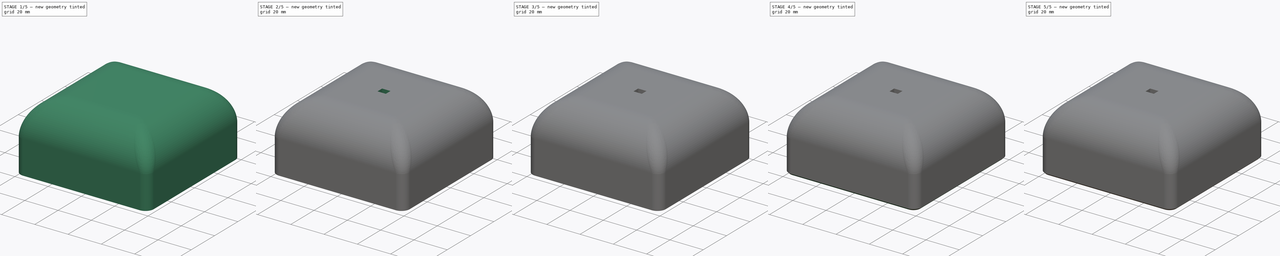
[diagram: build sequence overview — one tinted view per stage of 5, left to right]
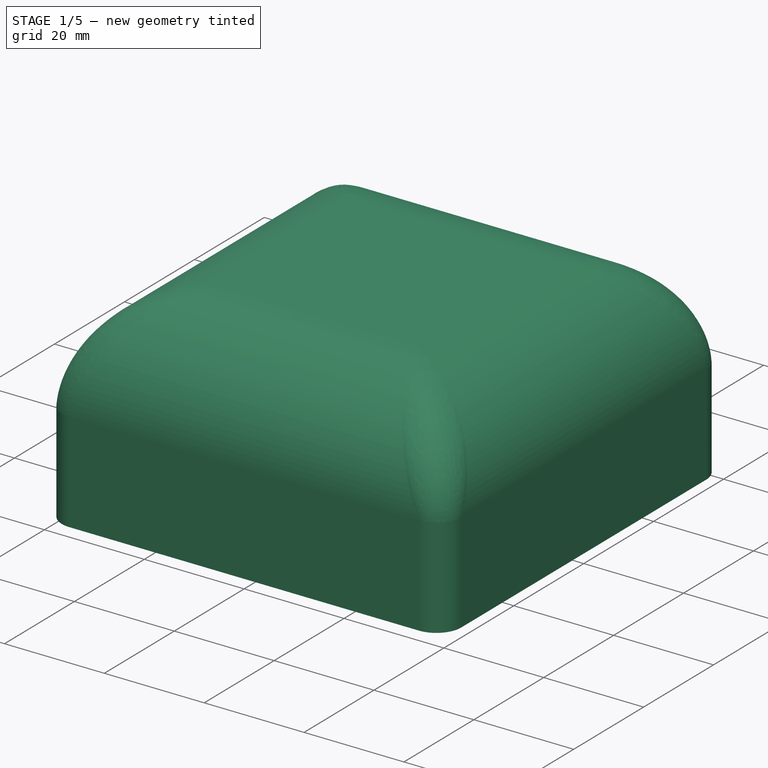
[diagram: stage 1 of 5 — iso view after this stage's code; geometry added in this stage tinted green]
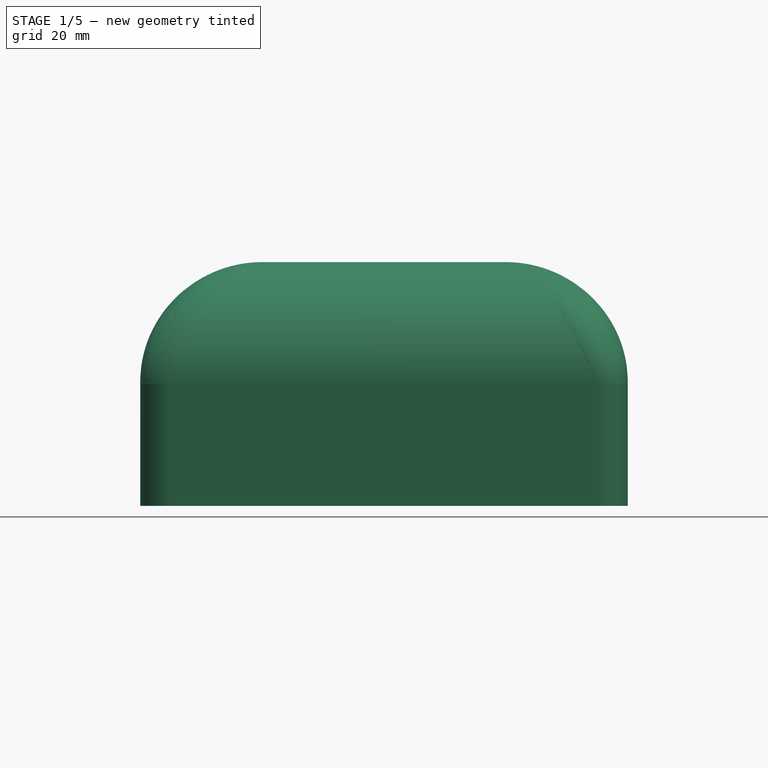
[diagram: stage 1 of 5 — front view after this stage's code; geometry added in this stage tinted green]
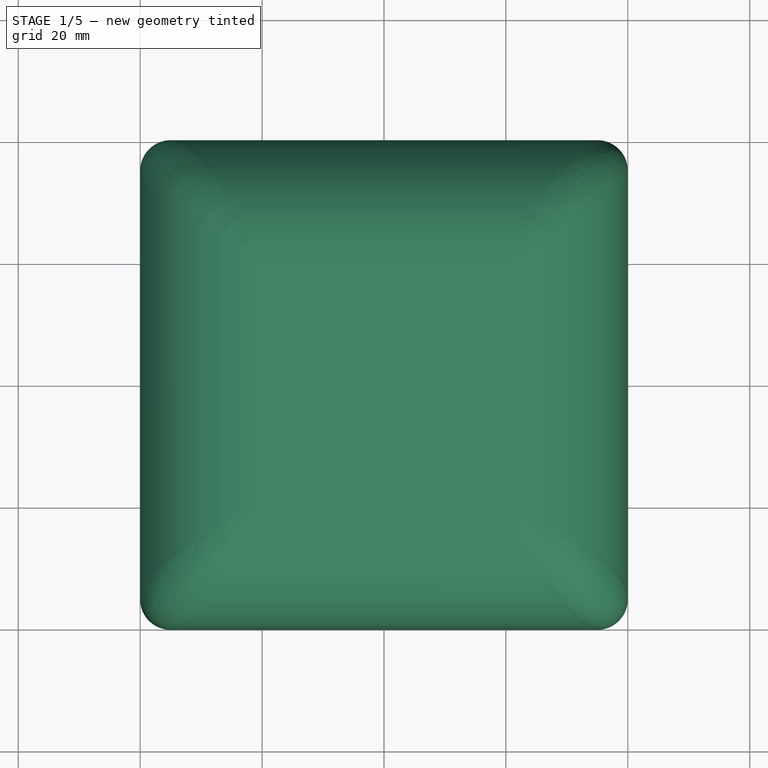
[diagram: stage 1 of 5 — top view after this stage's code; geometry added in this stage tinted green]
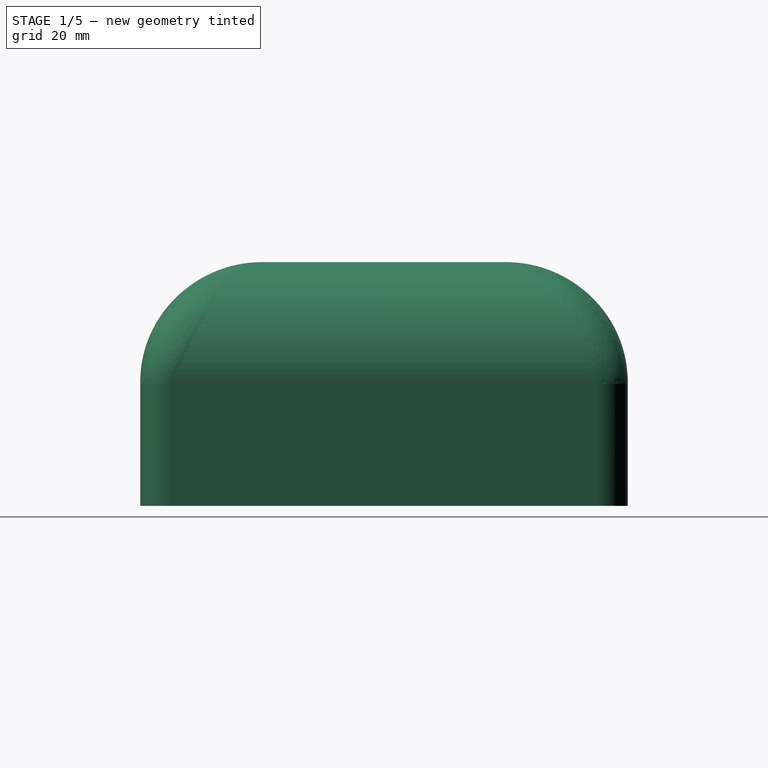
[diagram: stage 1 of 5 — right view after this stage's code; geometry added in this stage tinted green]
FCSTD DOCUMENT  (FreeCAD 0.15R4671 (Git))
Label: ermina_v4_lid
License: All rights reserved
LicenseURL: http://en.wikipedia.org/wiki/All_rights_reserved
objects: Sketcher::SketchObject×9, PartDesign::Pad×7, PartDesign::Fillet×5, PartDesign::Pocket×2, Part::Thickness×1, PartDesign::Chamfer×1
note: 34 computed .brp shape members not serialized (recipe doc carries the construction recipe); baked Part::Feature solids carry a one-line shape summary decoded from their .brp

FEATURE [Sketcher::SketchObject] Sketch
  sketch-geometry (4):
    g0: LineSegment StartX=0 StartY=0 StartZ=0 EndX=80 EndY=0 EndZ=0
    g1: LineSegment StartX=80 StartY=0 StartZ=0 EndX=80 EndY=80 EndZ=0
    g2: LineSegment StartX=80 StartY=80 StartZ=0 EndX=0 EndY=80 EndZ=0
    g3: LineSegment StartX=0 StartY=80 StartZ=0 EndX=0 EndY=0 EndZ=0
  constraints (13):
    c: Coincident(g0,g1)
    c: Coincident(g1,g2)
    c: Coincident(g2,g3)
    c: Coincident(g3,g0)
    c: Horizontal(g0)
    c: Horizontal(g2)
    c: Vertical(g1)
    c: Vertical(g3)
    c: Coincident(g0,g-1)
    c: Equal(g2,g1)
    c: Equal(g1,g0)
    c: Equal(g0,g3)
    c: DistanceX(g0) = 80
FEATURE [PartDesign::Pad] Pad
  Length = 40
  Length2 = 100
  Sketch = -> Sketch
  Type = 0
FEATURE [PartDesign::Fillet] Fillet
  Base = -> Pad [Edge8,Edge1,Edge2,Edge5]
  Radius = 5
FEATURE [PartDesign::Fillet] Fillet001
  Base = -> Fillet [Edge20,Edge18,Edge16,Edge13,Edge4,Edge15,Edge17,Edge19]
  Radius = 20
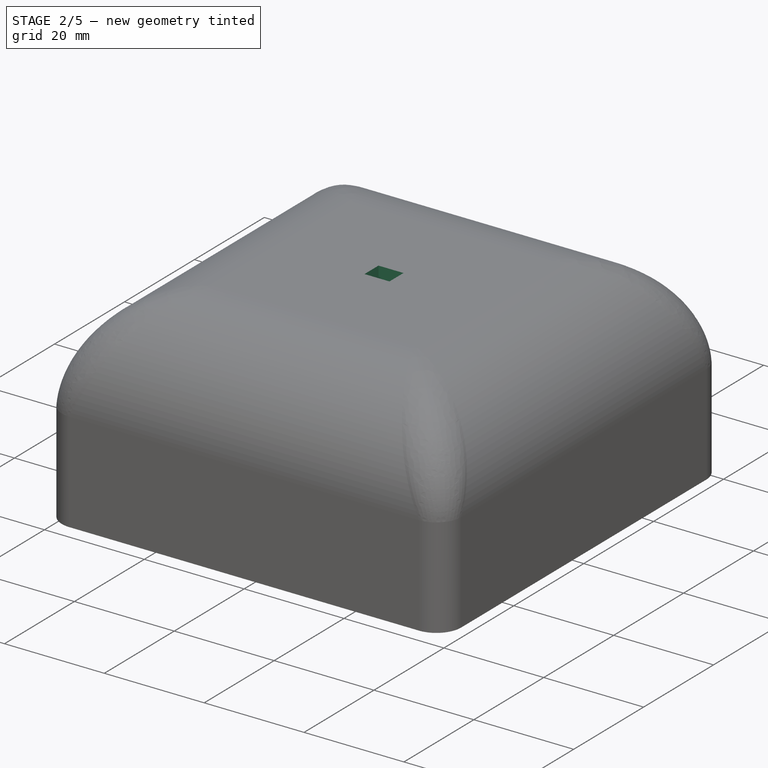
[diagram: stage 2 of 5 — iso view after this stage's code; geometry added in this stage tinted green]
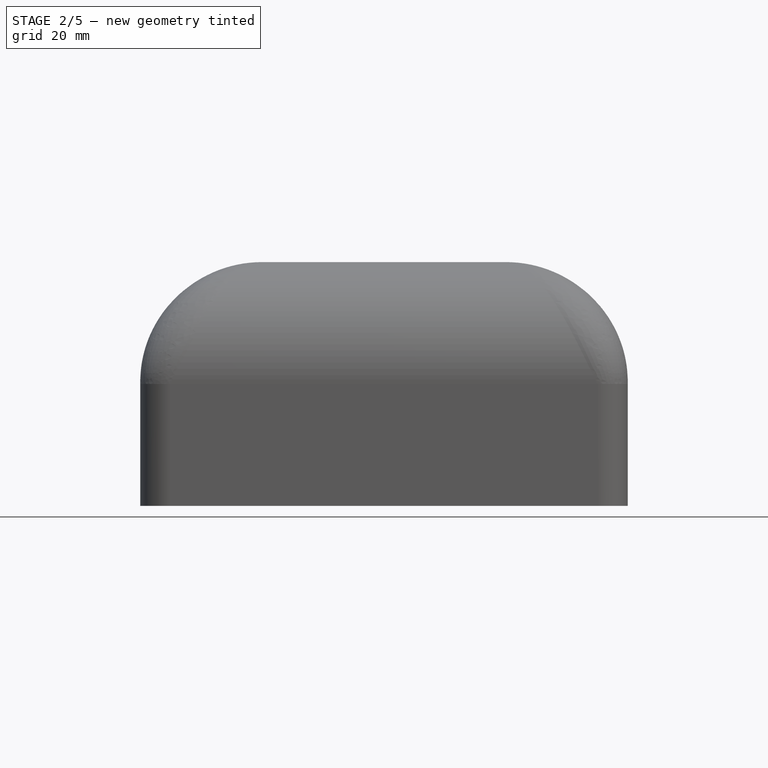
[diagram: stage 2 of 5 — front view after this stage's code; geometry added in this stage tinted green]
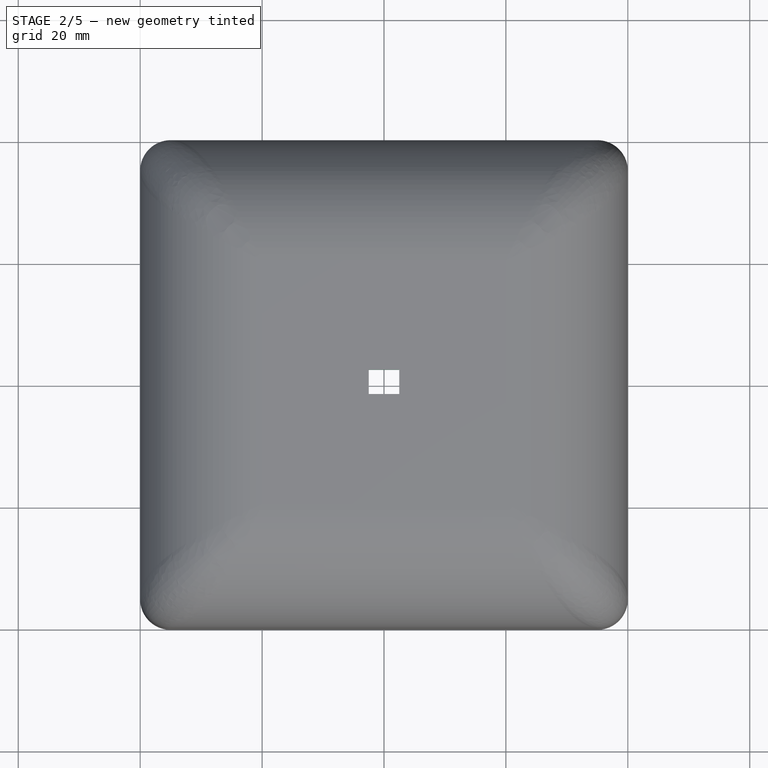
[diagram: stage 2 of 5 — top view after this stage's code; geometry added in this stage tinted green]
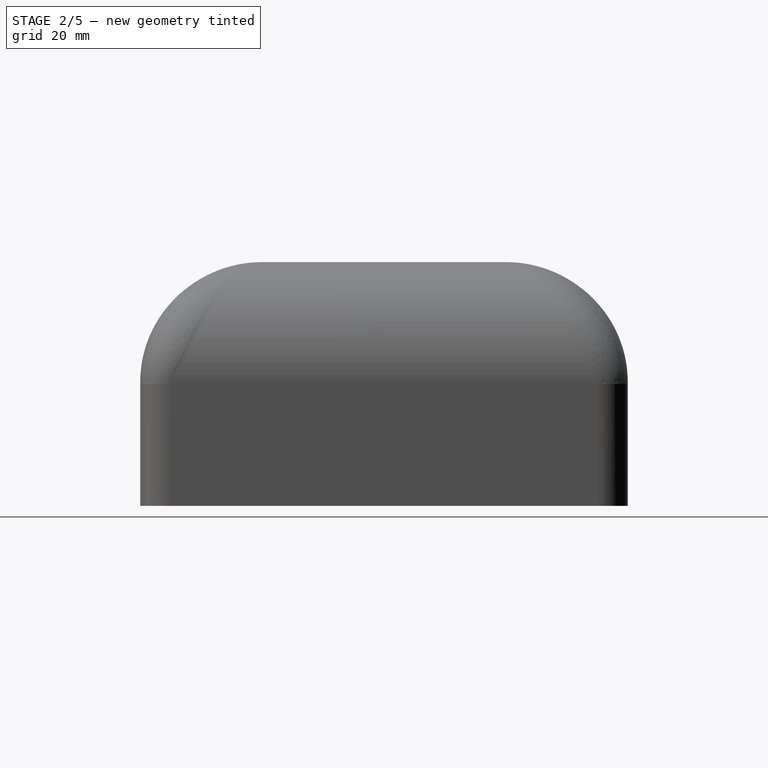
[diagram: stage 2 of 5 — right view after this stage's code; geometry added in this stage tinted green]
FEATURE [Part::Thickness] Thickness
  Faces = -> Fillet001 [Face4]
  Intersection = false
  Join = 2
  Mode = 0
  SelfIntersection = false
  Value = -2
FEATURE [Sketcher::SketchObject] Sketch001
  ExternalGeometry = -> [Thickness]
  Placement = pos=(0,0,38) rot=(1,0,0;3.14159rad)
  Support = -> Thickness [Face25]
  sketch-geometry (4):
    g0: LineSegment StartX=37.5 StartY=-38 StartZ=0 EndX=42.5 EndY=-38 EndZ=0
    g1: LineSegment StartX=42.5 StartY=-38 StartZ=0 EndX=42.5 EndY=-42 EndZ=0
    g2: LineSegment StartX=42.5 StartY=-42 StartZ=0 EndX=37.5 EndY=-42 EndZ=0
    g3: LineSegment StartX=37.5 StartY=-42 StartZ=0 EndX=37.5 EndY=-38 EndZ=0
  constraints (14):
    c: Coincident(g0,g1)
    c: Coincident(g1,g2)
    c: Coincident(g2,g3)
    c: Coincident(g3,g0)
    c: Horizontal(g0)
    c: Horizontal(g2)
    c: Vertical(g1)
    c: Vertical(g3)
    c: Equal(g0,g2)
    c: Equal(g1,g3)
    c: DistanceY(g1) = -4
    c: DistanceX(g0) = 5
    c: Distance(g0,g-6) = 17.5
    c: Distance(g1,g-5) = 18
FEATURE [PartDesign::Pocket] Pocket
  Length = 5
  Sketch = -> Sketch001
  Type = 1
FEATURE [Sketcher::SketchObject] Sketch002
  ExternalGeometry = -> [Pocket]
  Placement = pos=(0,0,38) rot=(1,0,0;3.14159rad)
  Support = -> Pocket [Face39]
  sketch-geometry (8):
    g0: LineSegment StartX=37.5 StartY=-42.5 StartZ=0 EndX=37.5 EndY=-37.5 EndZ=0
    g1: LineSegment StartX=37.5 StartY=-37.5 StartZ=0 EndX=42.5 EndY=-37.5 EndZ=0
    g2: LineSegment StartX=42.5 StartY=-37.5 StartZ=0 EndX=42.5 EndY=-42.5 EndZ=0
    g3: LineSegment StartX=42.5 StartY=-42.5 StartZ=0 EndX=44.5 EndY=-42.5 EndZ=0
    g4: LineSegment StartX=44.5 StartY=-42.5 StartZ=0 EndX=44.5 EndY=-35.5 EndZ=0
    g5: LineSegment StartX=44.5 StartY=-35.5 StartZ=0 EndX=35.5 EndY=-35.5 EndZ=0
    g6: LineSegment StartX=35.5 StartY=-35.5 StartZ=0 EndX=35.5 EndY=-42.5 EndZ=0
    g7: LineSegment StartX=35.5 StartY=-42.5 StartZ=0 EndX=37.5 EndY=-42.5 EndZ=0
  constraints (25):
    c: Vertical(g0)
    c: Coincident(g0,g1)
    c: Horizontal(g1)
    c: Coincident(g1,g2)
    c: Vertical(g2)
    c: Coincident(g2,g3)
    c: Horizontal(g3)
    c: Coincident(g3,g4)
    c: Vertical(g4)
    c: Coincident(g4,g5)
    c: Horizontal(g5)
    c: Coincident(g5,g6)
    c: Vertical(g6)
    c: Coincident(g6,g7)
    c: Coincident(g7,g0)
    c: Horizontal(g7)
    c: Equal(g7,g3)
    c: Equal(g6,g4)
    c: Equal(g2,g0)
    c: PointOnObject(g0,g-5)
    c: PointOnObject(g1,g-3)
    c: DistanceX(g3) = 2
    c: Distance(g0,g-6) = 0.5
    c: Distance(g0,g-4) = 0.5
    c: Distance(g4,g1) = 2
FEATURE [PartDesign::Pad] Pad001
  Length = 6
  Length2 = 100
  Sketch = -> Sketch002
  Type = 0
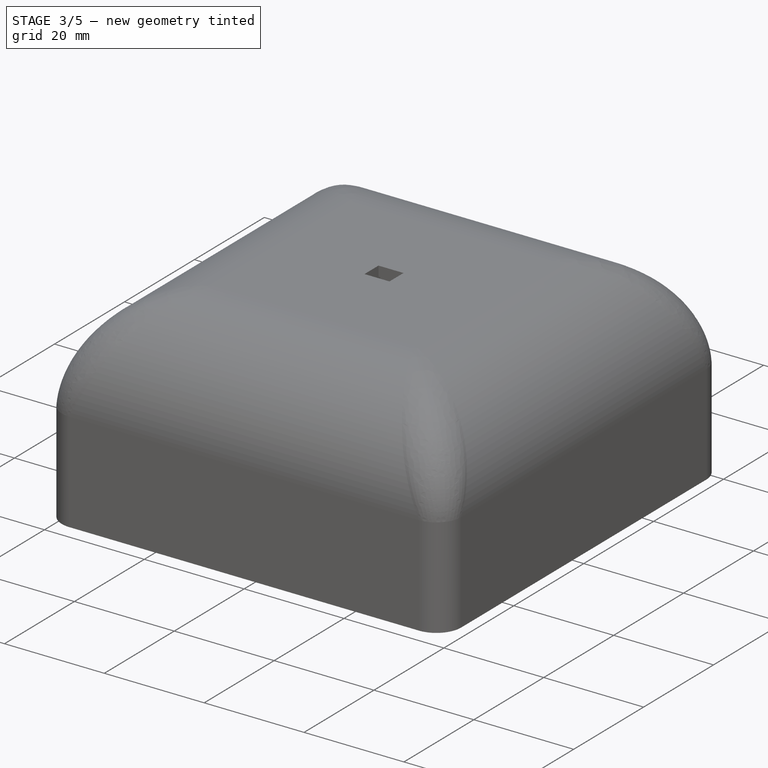
[diagram: stage 3 of 5 — iso view after this stage's code; geometry added in this stage tinted green]
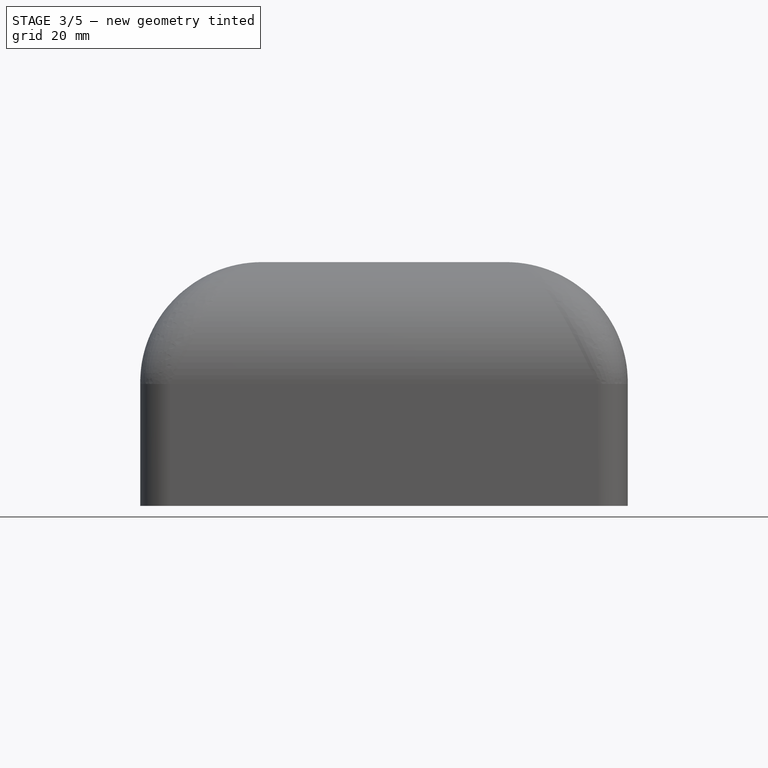
[diagram: stage 3 of 5 — front view after this stage's code; geometry added in this stage tinted green]
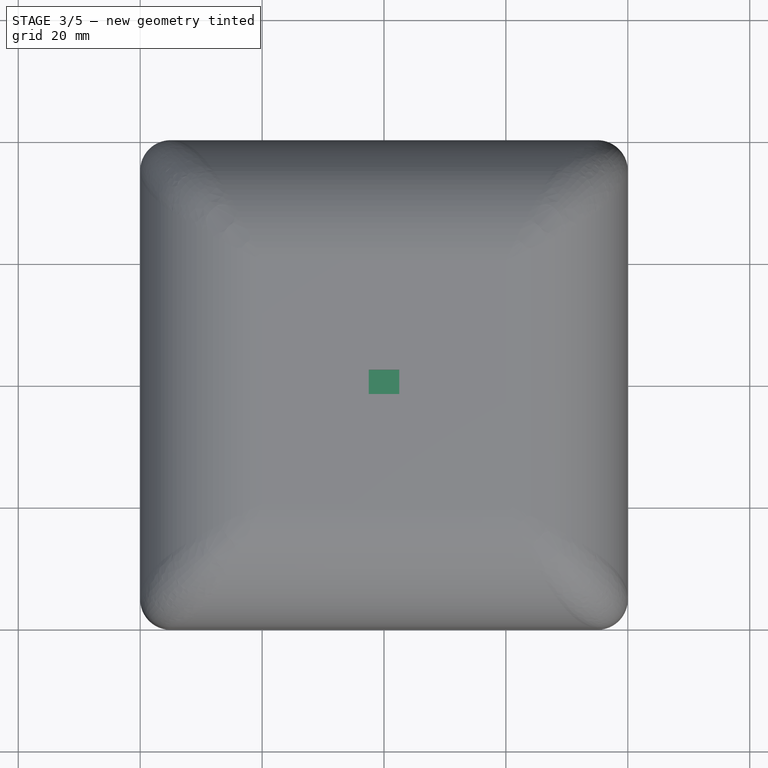
[diagram: stage 3 of 5 — top view after this stage's code; geometry added in this stage tinted green]
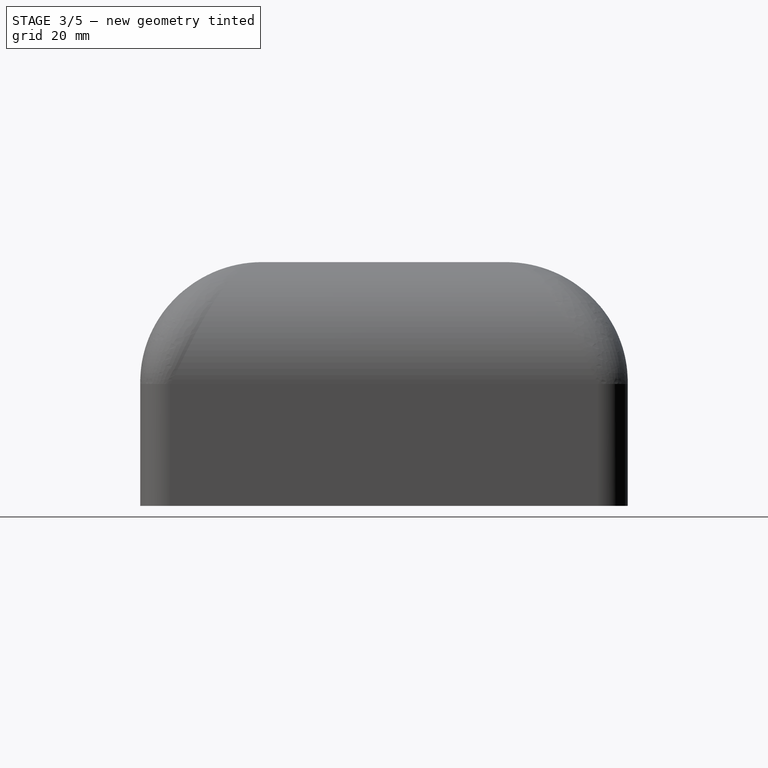
[diagram: stage 3 of 5 — right view after this stage's code; geometry added in this stage tinted green]
FEATURE [Sketcher::SketchObject] Sketch003
  ExternalGeometry = -> [Pad001]
  Placement = pos=(0,0,38) rot=(1,0,0;3.14159rad)
  Support = -> Pad001 [Face39]
  sketch-geometry (4):
    g0: Circle CenterX=22 CenterY=-32 CenterZ=0 NormalX=0 NormalY=0 NormalZ=1 Radius=2
    g1: Circle CenterX=58 CenterY=-32 CenterZ=0 NormalX=0 NormalY=0 NormalZ=1 Radius=2
    g2: Circle CenterX=22 CenterY=-48 CenterZ=0 NormalX=0 NormalY=0 NormalZ=1 Radius=2
    g3: Circle CenterX=58 CenterY=-48 CenterZ=0 NormalX=0 NormalY=0 NormalZ=1 Radius=2
  constraints (12):
    c: Equal(g3,g1)
    c: Equal(g1,g0)
    c: Equal(g0,g2)
    c: Radius(g0) = 2
    c: Distance(g0,g1) = 36
    c: Distance(g2,g3) = 36
    c: Distance(g3,g1) = 16
    c: Distance(g2,g0) = 16
    c: Distance(g1,g-4) = 2
    c: Distance(g3,g-4) = 2
    c: Distance(g1,g-5) = 12
    c: Distance(g2,g-6) = 12
FEATURE [PartDesign::Pad] Pad002
  Length = 7
  Length2 = 100
  Sketch = -> Sketch003
  Type = 0
FEATURE [Sketcher::SketchObject] Sketch004
  ExternalGeometry = -> [Pad002]
  Placement = pos=(0,0,31) rot=(1,0,0;3.14159rad)
  Support = -> Pad002 [Face55]
  sketch-geometry (4):
    g0: LineSegment StartX=17.5 StartY=-30 StartZ=0 EndX=62.5 EndY=-30 EndZ=0
    g1: LineSegment StartX=62.5 StartY=-30 StartZ=0 EndX=62.5 EndY=-50 EndZ=0
    g2: LineSegment StartX=62.5 StartY=-50 StartZ=0 EndX=17.5 EndY=-50 EndZ=0
    g3: LineSegment StartX=17.5 StartY=-50 StartZ=0 EndX=17.5 EndY=-30 EndZ=0
  constraints (14):
    c: Coincident(g0,g1)
    c: Coincident(g1,g2)
    c: Coincident(g2,g3)
    c: Coincident(g3,g0)
    c: Horizontal(g0)
    c: Horizontal(g2)
    c: Vertical(g1)
    c: Vertical(g3)
    c: Equal(g0,g2)
    c: Equal(g1,g3)
    c: DistanceX(g0) = 45
    c: DistanceY(g3) = 20
    c: Distance(g-4,g0) = 2
    c: Distance(g-5,g1) = 4.5
FEATURE [PartDesign::Pad] Pad003
  Length = 2
  Length2 = 100
  Sketch = -> Sketch004
  Type = 0
FEATURE [Sketcher::SketchObject] Sketch005
  ExternalGeometry = -> [Pad003]
  Placement = pos=(0,78,0) rot=(1,0,0;1.5708rad)
  Support = -> Pad003 [Face18]
  sketch-geometry (8):
    g0: LineSegment StartX=23 StartY=15 StartZ=0 EndX=25 EndY=15 EndZ=0
    g1: LineSegment StartX=25 StartY=15 StartZ=0 EndX=25 EndY=5 EndZ=0
    g2: LineSegment StartX=25 StartY=5 StartZ=0 EndX=23 EndY=5 EndZ=0
    g3: LineSegment StartX=23 StartY=5 StartZ=0 EndX=23 EndY=15 EndZ=0
    g4: LineSegment StartX=55 StartY=15 StartZ=0 EndX=57 EndY=15 EndZ=0
    g5: LineSegment StartX=57 StartY=15 StartZ=0 EndX=57 EndY=5 EndZ=0
    g6: LineSegment StartX=57 StartY=5 StartZ=0 EndX=55 EndY=5 EndZ=0
    g7: LineSegment StartX=55 StartY=5 StartZ=0 EndX=55 EndY=15 EndZ=0
  constraints (28):
    c: Coincident(g0,g1)
    c: Coincident(g1,g2)
    c: Coincident(g2,g3)
    c: Coincident(g3,g0)
    c: Horizontal(g0)
    c: Horizontal(g2)
    c: Vertical(g1)
    c: Vertical(g3)
    c: Coincident(g4,g5)
    c: Coincident(g5,g6)
    c: Coincident(g6,g7)
    c: Coincident(g7,g4)
    c: Horizontal(g4)
    c: Horizontal(g6)
    c: Vertical(g5)
    c: Vertical(g7)
    c: Equal(g3,g1)
    c: Equal(g1,g7)
    c: Equal(g7,g5)
    c: Equal(g0,g2)
    c: Equal(g2,g6)
    c: Equal(g6,g4)
    c: DistanceX(g0) = 2
    c: DistanceY(g3) = 10
    c: Distance(g1,g7) = 30
    c: Distance(g6,g-4) = 20
    c: Distance(g4,g-3) = 5
    c: Distance(g0,g-3) = 5
FEATURE [PartDesign::Pad] Pad004
  Length = 8
  Length2 = 100
  Sketch = -> Sketch005
  Type = 0
FEATURE [Sketcher::SketchObject] Sketch006
  ExternalGeometry = -> [Pad004]
  Placement = pos=(0,70,0) rot=(1,0,0;1.5708rad)
  Support = -> Pad004 [Face51]
  sketch-geometry (4):
    g0: LineSegment StartX=23 StartY=15 StartZ=0 EndX=57 EndY=15 EndZ=0
    g1: LineSegment StartX=57 StartY=15 StartZ=0 EndX=57 EndY=5 EndZ=0
    g2: LineSegment StartX=57 StartY=5 StartZ=0 EndX=23 EndY=5 EndZ=0
    g3: LineSegment StartX=23 StartY=5 StartZ=0 EndX=23 EndY=15 EndZ=0
  constraints (10):
    c: Coincident(g0,g1)
    c: Coincident(g1,g2)
    c: Coincident(g2,g3)
    c: Coincident(g3,g0)
    c: Horizontal(g0)
    c: Horizontal(g2)
    c: Vertical(g1)
    c: Vertical(g3)
    c: Coincident(g0,g-3)
    c: Coincident(g1,g-4)
FEATURE [PartDesign::Pad] Pad005
  Length = 2
  Length2 = 100
  Sketch = -> Sketch006
  Type = 0
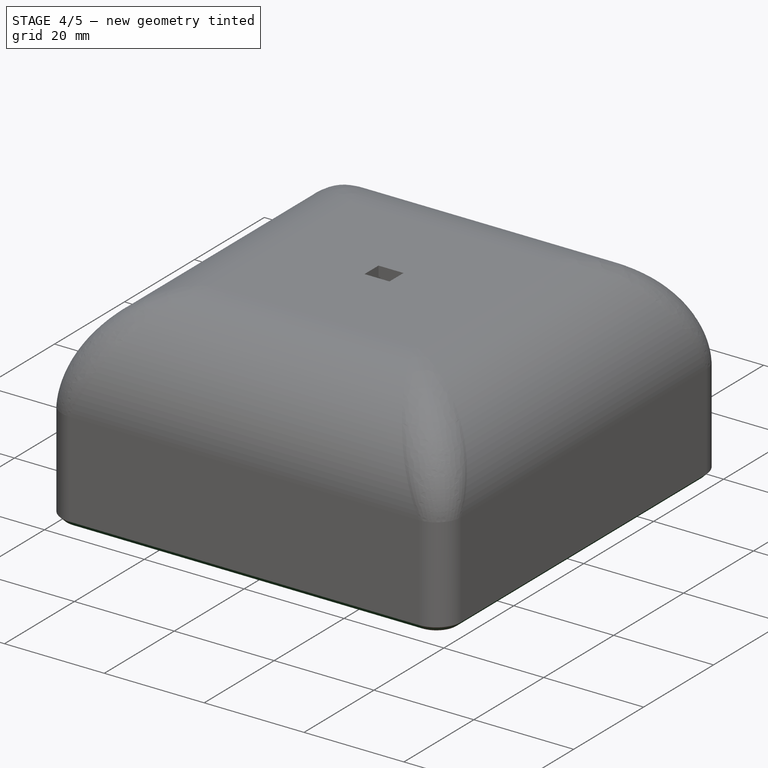
[diagram: stage 4 of 5 — iso view after this stage's code; geometry added in this stage tinted green]
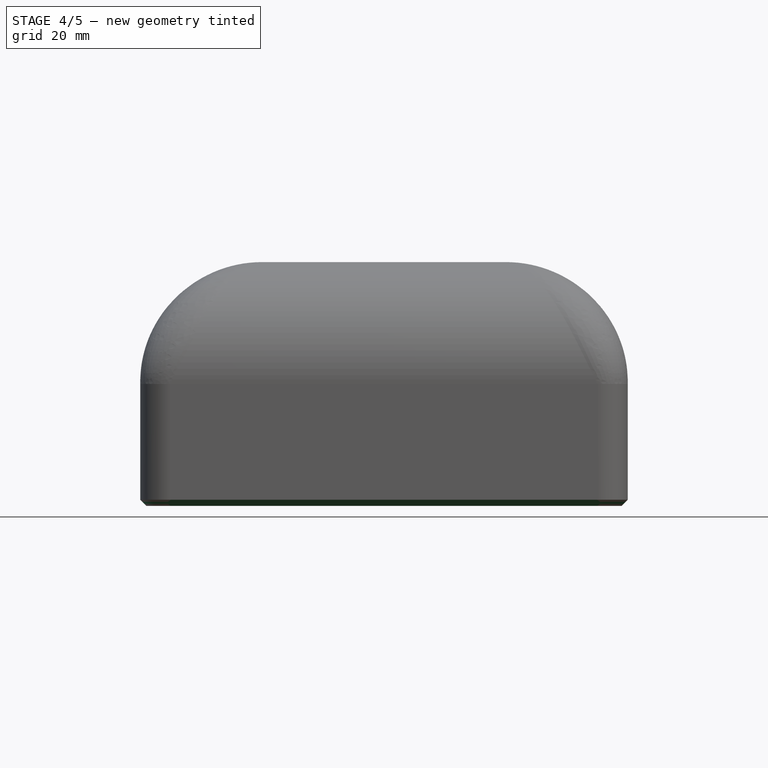
[diagram: stage 4 of 5 — front view after this stage's code; geometry added in this stage tinted green]
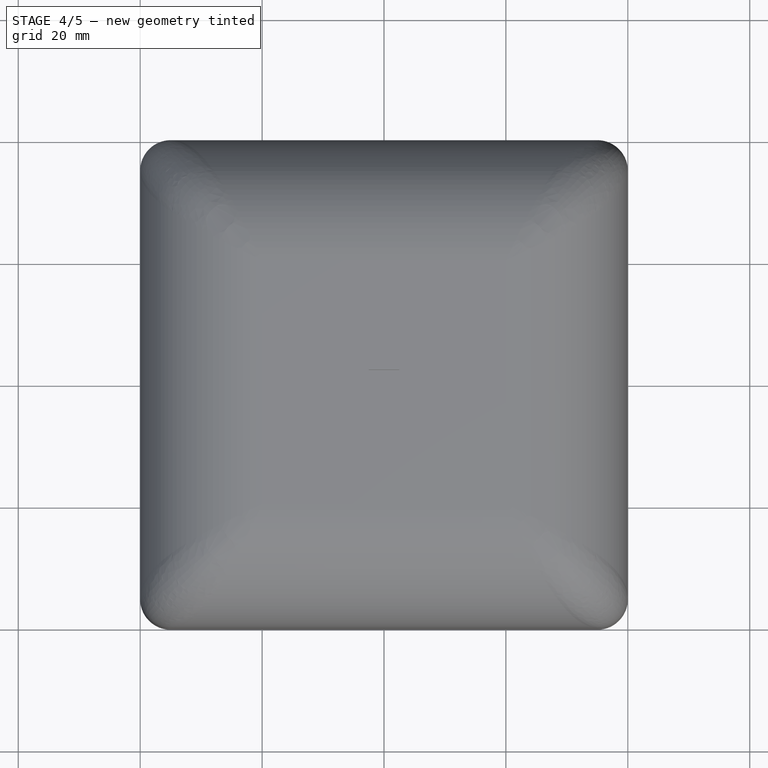
[diagram: stage 4 of 5 — top view after this stage's code; geometry added in this stage tinted green]
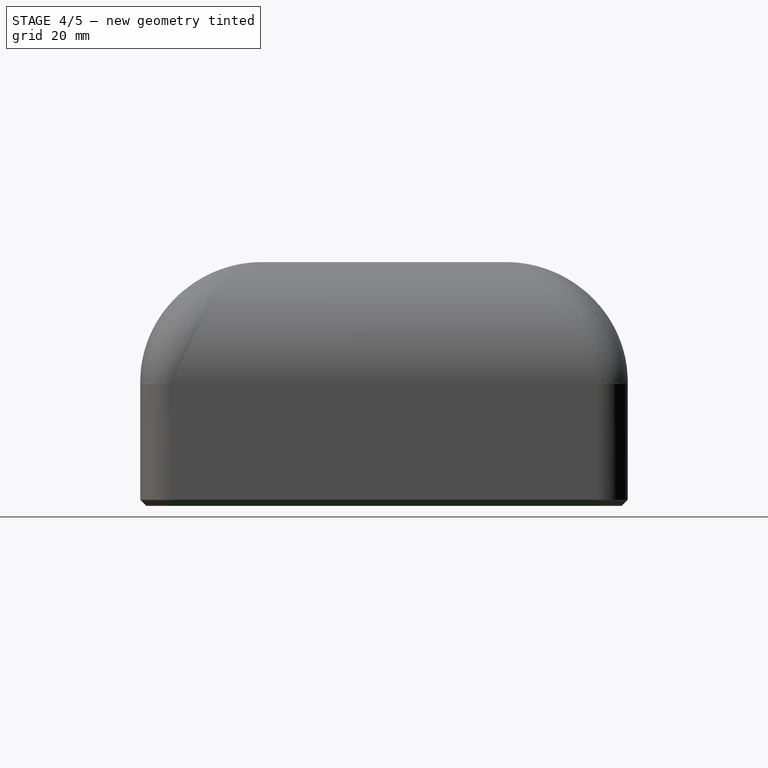
[diagram: stage 4 of 5 — right view after this stage's code; geometry added in this stage tinted green]
FEATURE [PartDesign::Chamfer] Chamfer
  Base = -> Pad005 [Edge3,Edge6,Edge11,Edge16,Edge15,Edge14,Edge13,Edge12]
  Size = 1
FEATURE [Sketcher::SketchObject] Sketch007
  ExternalGeometry = -> [Chamfer]
  Placement = pos=(0,0,0) rot=(1,0,0;3.14159rad)
  Support = -> Chamfer [Face9]
  sketch-geometry (20):
    g0: LineSegment StartX=5 StartY=-1 StartZ=0 EndX=10 EndY=-1 EndZ=0
    g1: LineSegment StartX=10 StartY=-1 StartZ=0 EndX=10 EndY=-10 EndZ=0
    g2: LineSegment StartX=10 StartY=-10 StartZ=0 EndX=1 EndY=-10 EndZ=0
    g3: LineSegment StartX=1 StartY=-10 StartZ=0 EndX=1 EndY=-5 EndZ=0
    g4: ArcOfCircle CenterX=5 CenterY=-5 CenterZ=0 NormalX=0 NormalY=0 NormalZ=1 Radius=4 StartAngle=1.5708 EndAngle=3.14159
    g5: LineSegment StartX=75 StartY=-1 StartZ=0 EndX=70 EndY=-1 EndZ=0
    g6: LineSegment StartX=70 StartY=-1 StartZ=0 EndX=70 EndY=-10 EndZ=0
    g7: LineSegment StartX=70 StartY=-10 StartZ=0 EndX=79 EndY=-10 EndZ=0
    g8: LineSegment StartX=79 StartY=-10 StartZ=0 EndX=79 EndY=-5 EndZ=0
    g9: ArcOfCircle CenterX=75 CenterY=-5 CenterZ=0 NormalX=0 NormalY=0 NormalZ=1 Radius=4 StartAngle=0 EndAngle=1.5708
    g10: LineSegment StartX=75 StartY=-79 StartZ=0 EndX=70 EndY=-79 EndZ=0
    g11: LineSegment StartX=70 StartY=-79 StartZ=0 EndX=70 EndY=-70 EndZ=0
    g12: LineSegment StartX=70 StartY=-70 StartZ=0 EndX=79 EndY=-70 EndZ=0
    g13: LineSegment StartX=79 StartY=-70 StartZ=0 EndX=79 EndY=-75 EndZ=0
    g14: ArcOfCircle CenterX=75 CenterY=-75 CenterZ=0 NormalX=0 NormalY=0 NormalZ=1 Radius=4 StartAngle=4.71239 EndAngle=6.28319
    g15: LineSegment StartX=1 StartY=-75 StartZ=0 EndX=1 EndY=-70 EndZ=0
    g16: LineSegment StartX=1 StartY=-70 StartZ=0 EndX=10 EndY=-70 EndZ=0
    g17: LineSegment StartX=10 StartY=-70 StartZ=0 EndX=10 EndY=-79 EndZ=0
    g18: LineSegment StartX=10 StartY=-79 StartZ=0 EndX=5 EndY=-79 EndZ=0
    g19: ArcOfCircle CenterX=5 CenterY=-75 CenterZ=0 NormalX=0 NormalY=0 NormalZ=1 Radius=4 StartAngle=3.14159 EndAngle=4.71239
  constraints (56):
    c: Coincident(g-6,g0)
    c: PointOnObject(g0,g-6)
    c: Coincident(g0,g1)
    c: Vertical(g1)
    c: Coincident(g1,g2)
    c: PointOnObject(g2,g-7)
    c: Horizontal(g2)
    c: Coincident(g2,g3)
    c: Coincident(g3,g-7)
    c: Equal(g1,g2)
    c: DistanceY(g1) = -9
    c: Coincident(g4,g0)
    c: Coincident(g4,g3)
    c: Tangent(g-9,g5) = -1.5708
    c: Coincident(g5,g6)
    c: Vertical(g6)
    c: Coincident(g6,g7)
    c: PointOnObject(g7,g-10)
    c: Horizontal(g7)
    c: Coincident(g7,g8)
    c: Coincident(g8,g-10)
    c: Vertical(g8)
    c: Equal(g6,g7)
    c: DistanceY(g6) = -9
    c: Coincident(g9,g-9)
    c: Coincident(g9,g8)
    c: Coincident(g9,g5)
    c: Coincident(g-12,g10)
    c: PointOnObject(g10,g-12)
    c: Coincident(g10,g11)
    c: Vertical(g11)
    c: Coincident(g11,g12)
    c: PointOnObject(g12,g-10)
    c: Horizontal(g12)
    c: Coincident(g12,g13)
    c: Coincident(g13,g-11)
    c: Vertical(g13)
    c: Coincident(g14,g-11)
    c: Coincident(g14,g10)
    c: Coincident(g14,g13)
    c: DistanceX(g12) = 9
    c: Equal(g11,g12)
    c: Tangent(g-13,g15) = 1.5708
    c: Coincident(g15,g16)
    c: Horizontal(g16)
    c: Coincident(g16,g17)
    c: PointOnObject(g17,g-12)
    c: Vertical(g17)
    c: Coincident(g17,g18)
    c: Coincident(g18,g-13)
    c: Horizontal(g18)
    c: Equal(g16,g17)
    c: DistanceX(g16) = 9
    c: Coincident(g19,g-13)
    c: Coincident(g19,g15)
    c: Coincident(g19,g18)
FEATURE [PartDesign::Pad] Pad006
  Length = 3
  Length2 = 100
  Reversed = true
  Sketch = -> Sketch007
  Type = 0
FEATURE [Sketcher::SketchObject] Sketch008
  ExternalGeometry = -> [Pad006]
  Placement = pos=(0,0,0) rot=(1,0,0;3.14159rad)
  Support = -> Pad006 [Face19]
  sketch-geometry (4):
    g0: Circle CenterX=5 CenterY=-5 CenterZ=0 NormalX=0 NormalY=0 NormalZ=1 Radius=3.5
    g1: Circle CenterX=75 CenterY=-5 CenterZ=0 NormalX=0 NormalY=0 NormalZ=1 Radius=3.5
    g2: Circle CenterX=75 CenterY=-75 CenterZ=0 NormalX=0 NormalY=0 NormalZ=1 Radius=3.5
    g3: Circle CenterX=5 CenterY=-75 CenterZ=0 NormalX=0 NormalY=0 NormalZ=1 Radius=3.5
  constraints (12):
    c: Equal(g0,g1)
    c: Equal(g1,g2)
    c: Equal(g2,g3)
    c: Radius(g0) = 3.5
    c: Distance(g0,g-3) = 5
    c: Distance(g0,g-4) = 5
    c: Distance(g1,g-3) = 5
    c: Distance(g1,g-5) = 5
    c: Distance(g2,g-5) = 5
    c: Distance(g2,g-6) = 5
    c: Distance(g3,g-6) = 5
    c: Distance(g3,g-4) = 5
FEATURE [PartDesign::Pocket] Pocket001
  Length = 2.5
  Sketch = -> Sketch008
  Type = 0
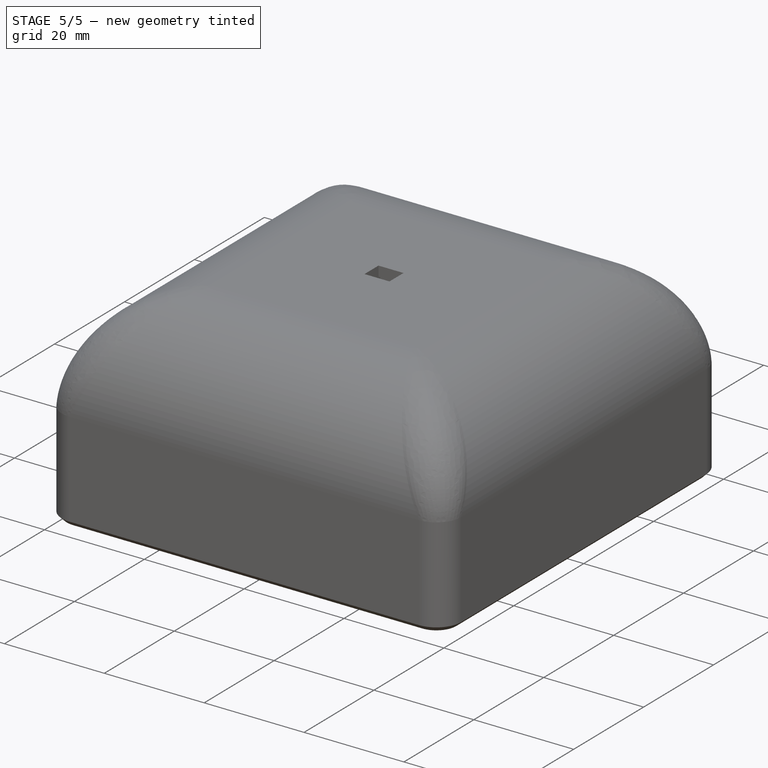
[diagram: stage 5 of 5 — iso view after this stage's code; geometry added in this stage tinted green]
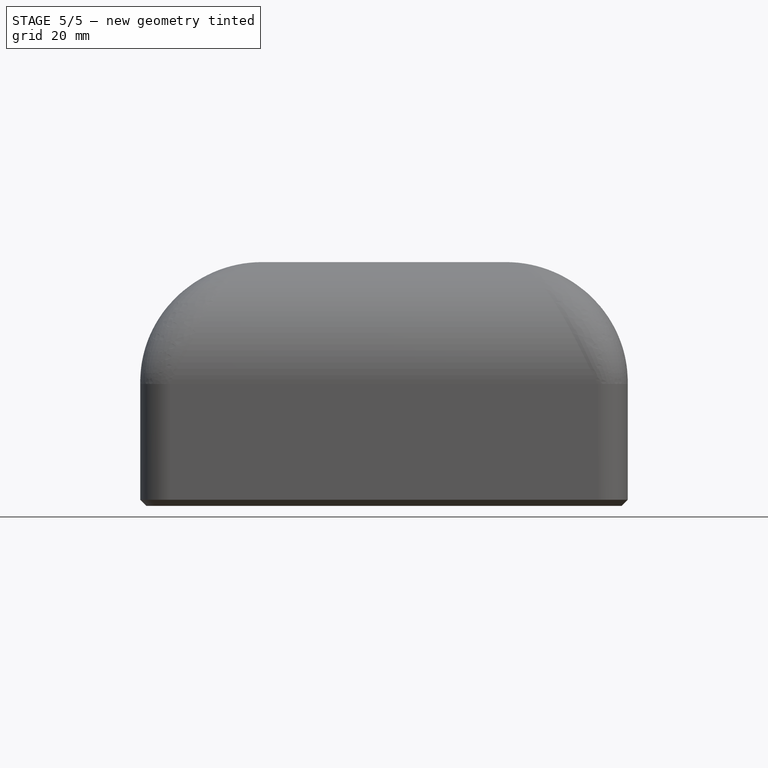
[diagram: stage 5 of 5 — front view after this stage's code; geometry added in this stage tinted green]
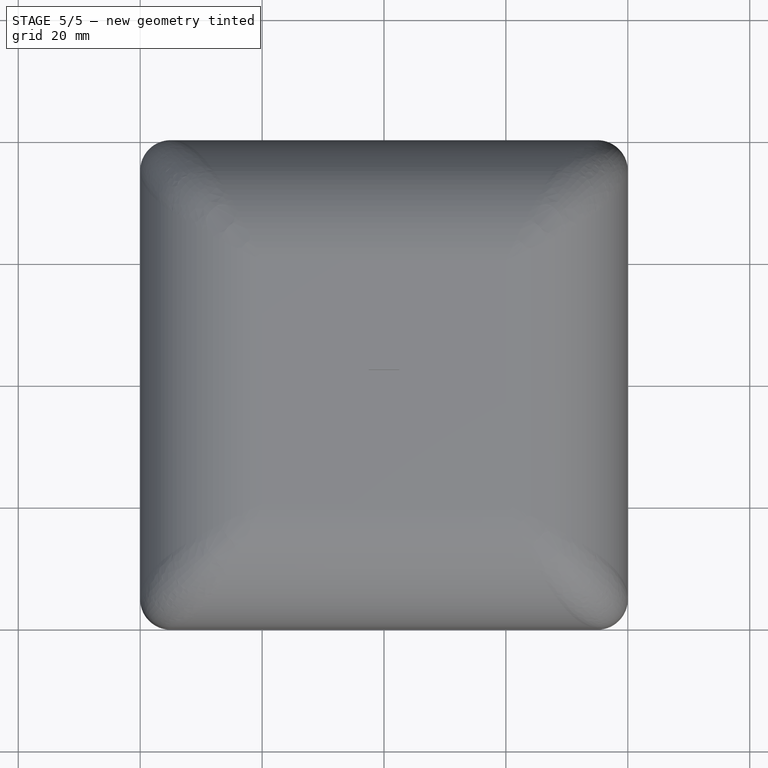
[diagram: stage 5 of 5 — top view after this stage's code; geometry added in this stage tinted green]
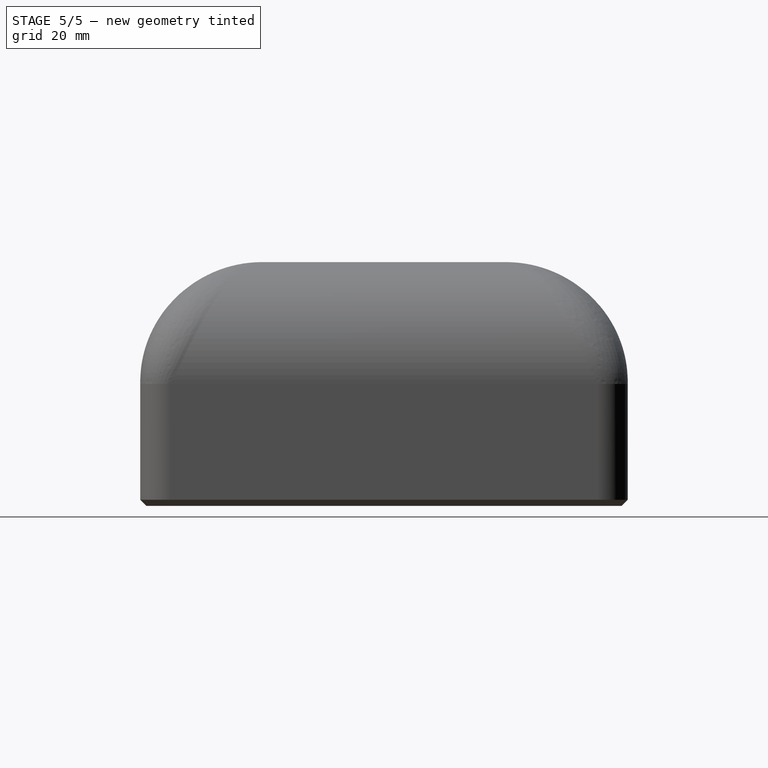
[diagram: stage 5 of 5 — right view after this stage's code; geometry added in this stage tinted green]
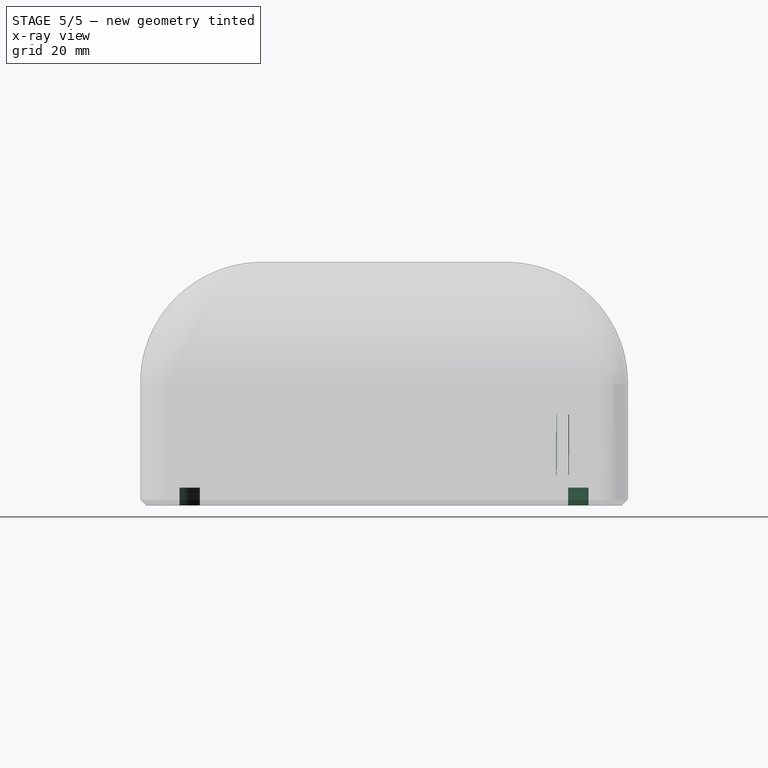
[diagram: stage 5 of 5 — x-ray composite at the right view; earlier geometry ghosted, this stage's added geometry solid]
FEATURE [PartDesign::Fillet] Fillet002
  Base = -> Pocket001 [Edge136,Edge110,Edge187,Edge205]
  Radius = 5
FEATURE [PartDesign::Fillet] Fillet003
  Base = -> Fillet002 [Edge289,Edge285]
  Radius = 1
FEATURE [PartDesign::Fillet] Fillet004
  Base = -> Fillet003 [Edge21,Edge19]
  Radius = 1
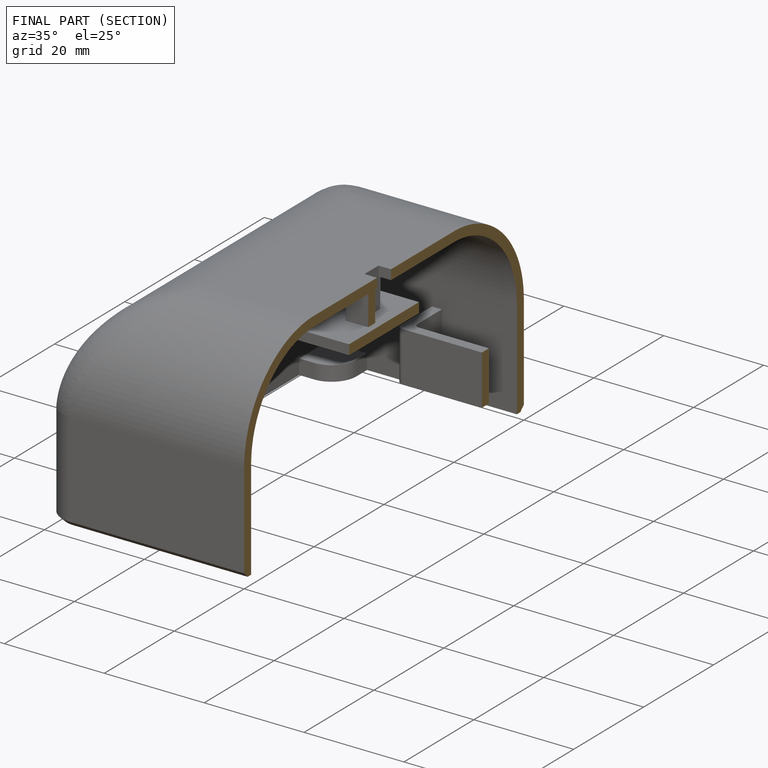
[diagram: finished part — half-section view (interior)]
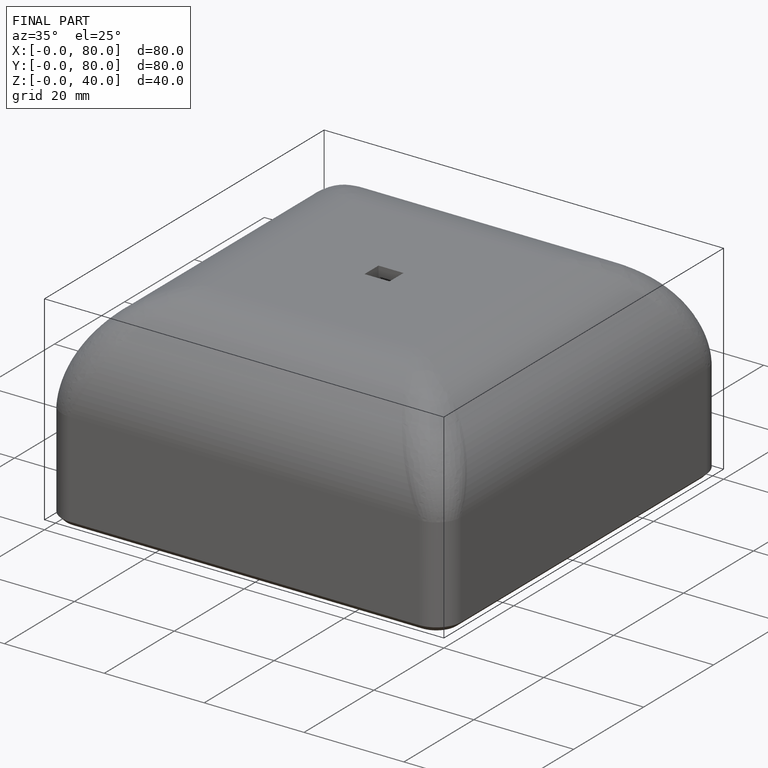
[diagram: finished part — iso view with bounding-box wireframe]
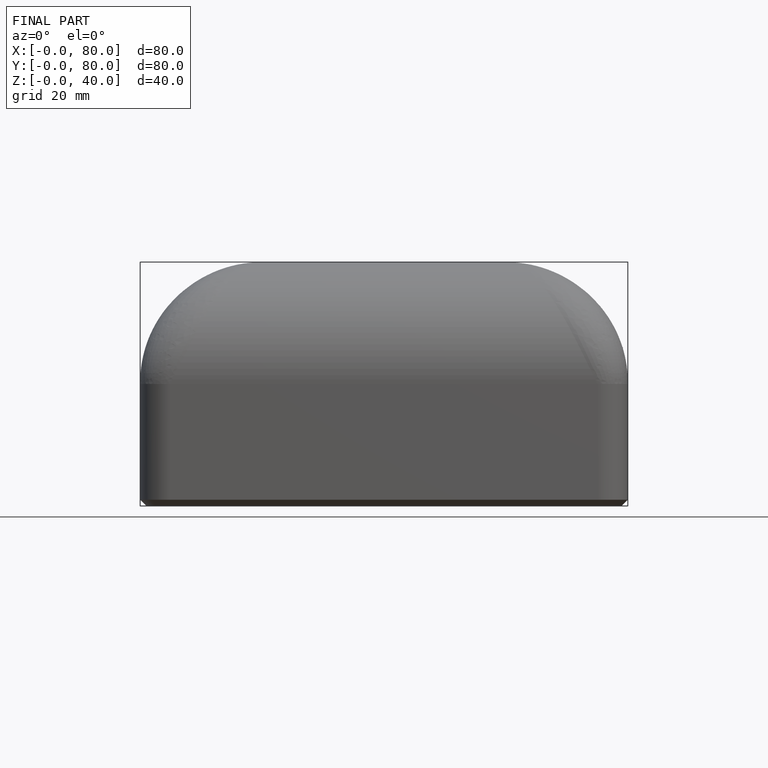
[diagram: finished part — front view with bounding-box wireframe]
